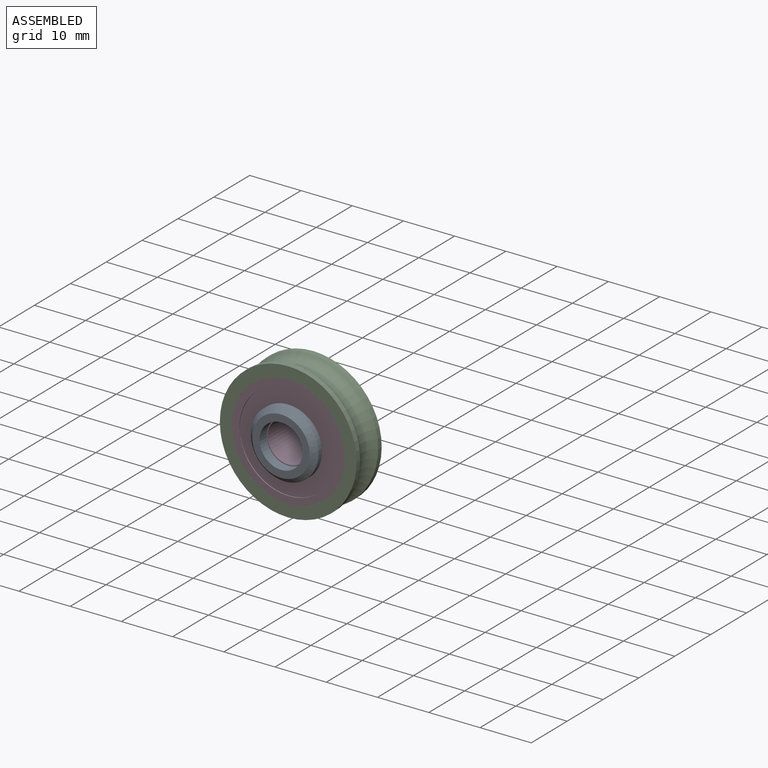
[diagram: assembled view]
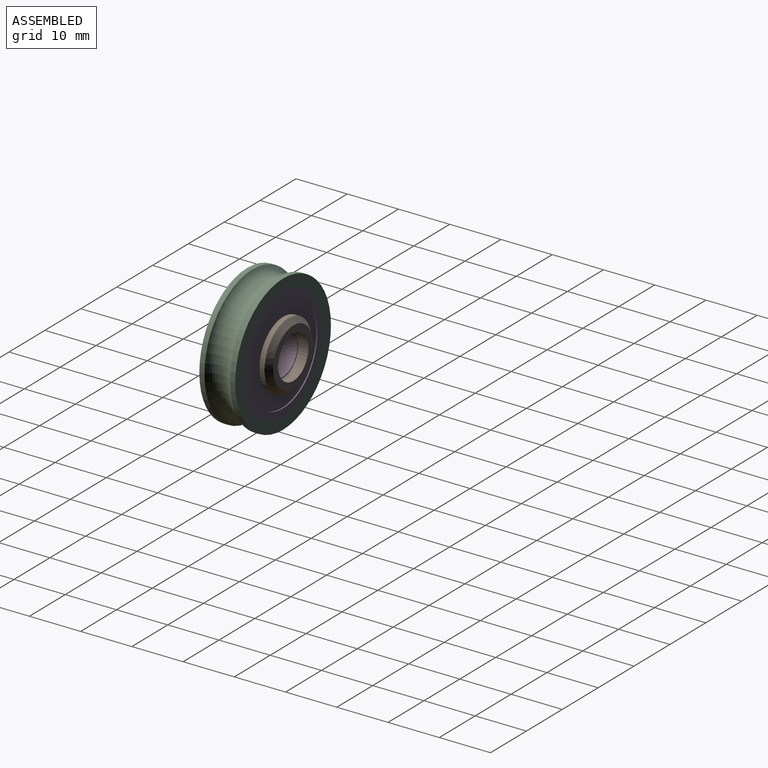
[diagram: assembled view, second angle]
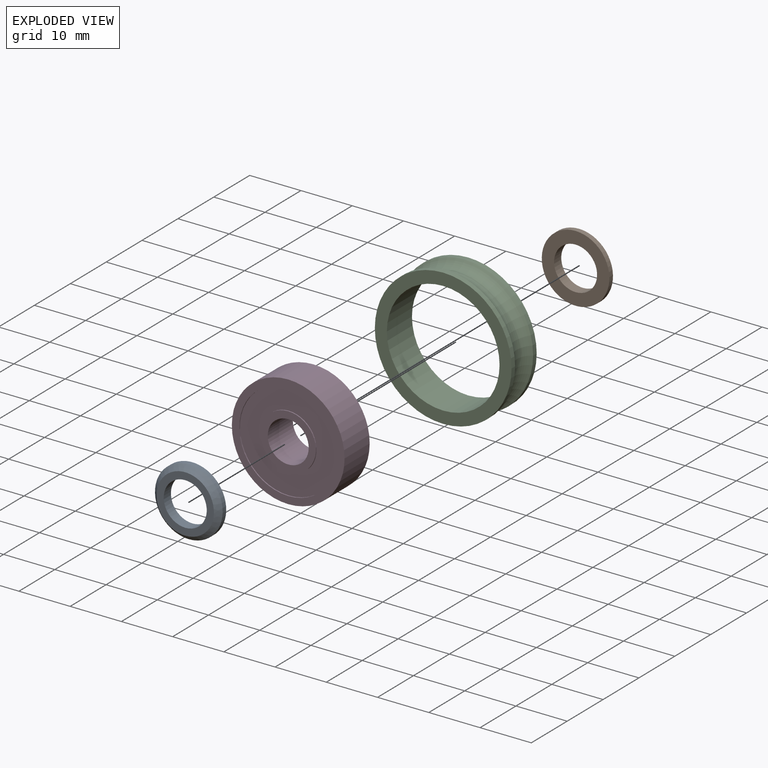
[diagram: exploded view]
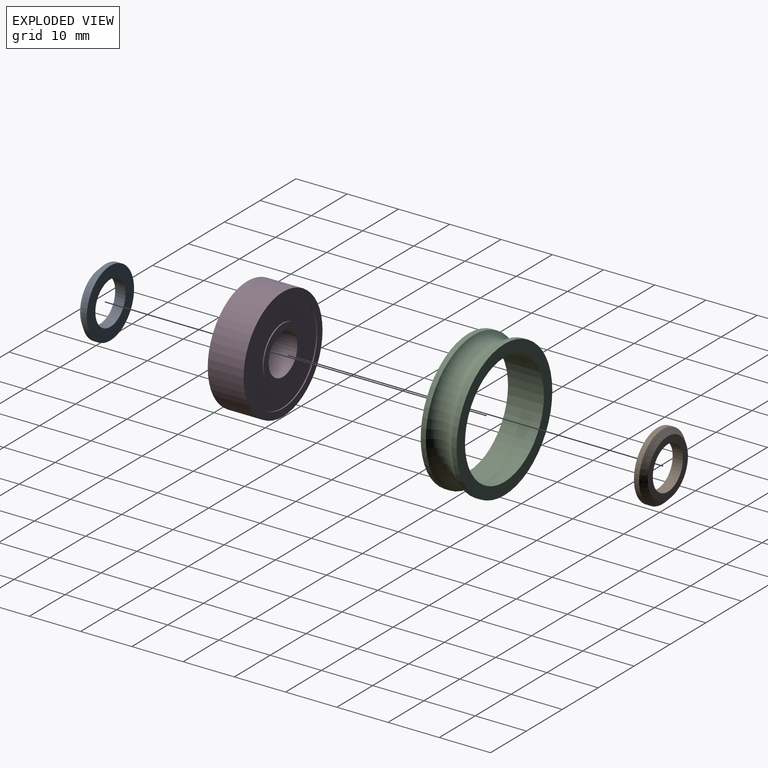
[diagram: exploded view, second angle]
ASSEMBLY  parts=4 mates=3
PART A: 5 faces, bbox 13.2x2x13.2 mm
  f0: cylinder r=4.2mm len=8.4mm, axis (0,1,0), area 52.8mm2, adj f2,f3
  f1: cylinder r=6.6mm len=13.2mm, axis (0,1,0), area 41.5mm2, adj f3,f4
  f2: plane 11.2x11.2mm, normal (0,-1,0), area 43.1mm2, adj f0,f4
  f3: plane 13.2x13.2mm, normal (0,1,0), area 81.4mm2, adj f0,f1
  f4: cone r=5.6mm half-angle=45deg, axis (0,1,0), area 54.2mm2, adj f1,f2
PART B: same geometry as A
PART C: 6 faces, bbox 32.5x7x32.5 mm
  f0: plane 26.68x26.68mm, normal (0,-1,0), area 179.1mm2, adj f1,f5
  f1: cylinder r=11mm len=22mm, axis (0,-1,0), area 483.8mm2, adj f0,f2
  f2: plane 26.68x26.68mm, normal (0,1,0), area 179.1mm2, adj f1,f3
  f3: cylinder r=13.34mm len=26.68mm, axis (0,-1,0), area 83.8mm2, adj f2,f4
  f4: torus R=15mm, axis (0,-1,0), area 462.8mm2, adj f3,f5
  f5: cylinder r=13.34mm len=26.68mm, axis (0,-1,0), area 83.8mm2, adj f0,f4
PART D: 12 faces, bbox 22x7x22 mm
  f0: plane 10.8x10.8mm, normal (0,-1,0), area 41.3mm2, adj f3,f9
  f1: plane 10.8x10.8mm, normal (0,1,0), area 41.3mm2, adj f3,f6
  f2: cylinder r=11mm len=22mm, axis (0,1,0), area 483.8mm2, adj f4,f5
  f3: cylinder r=4mm len=8mm, axis (0,1,0), area 175.9mm2, adj f0,f1
  f4: plane 22x22mm, normal (0,-1,0), area 93.6mm2, adj f2,f10
  f5: plane 22x22mm, normal (0,1,0), area 93.6mm2, adj f2,f7
  f6: cylinder r=5.4mm len=10.8mm, axis (0,1,0), area 6.8mm2, adj f1,f8
  f7: cylinder r=9.55mm len=19.1mm, axis (0,1,0), area 12mm2, adj f5,f8
  f8: plane 19.1x19.1mm, normal (0,1,0), area 194.9mm2, adj f6,f7
  f9: cylinder r=5.4mm len=10.8mm, axis (0,-1,0), area 6.8mm2, adj f0,f11
  f10: cylinder r=9.55mm len=19.1mm, axis (0,-1,0), area 12mm2, adj f4,f11
  f11: plane 19.1x19.1mm, normal (0,-1,0), area 194.9mm2, adj f9,f10
PLACE A t=(0,-4.5,0)mm
PLACE B rot(axis=(1,0,0),180deg) t=(0,4.5,0)mm
PLACE C at identity
PLACE D t=(0,10,0)mm fixed
MATE fastened A.f0 <-> D.f2  axis (0,1,0) through (0,-3.5,0)mm
MATE fastened B.f0 <-> D.f2  axis (0,-1,0) through (0,3.5,0)mm
MATE fastened D.f2 <-> C.f1  axis (0,-1,0) through (0,-3.5,0)mm
